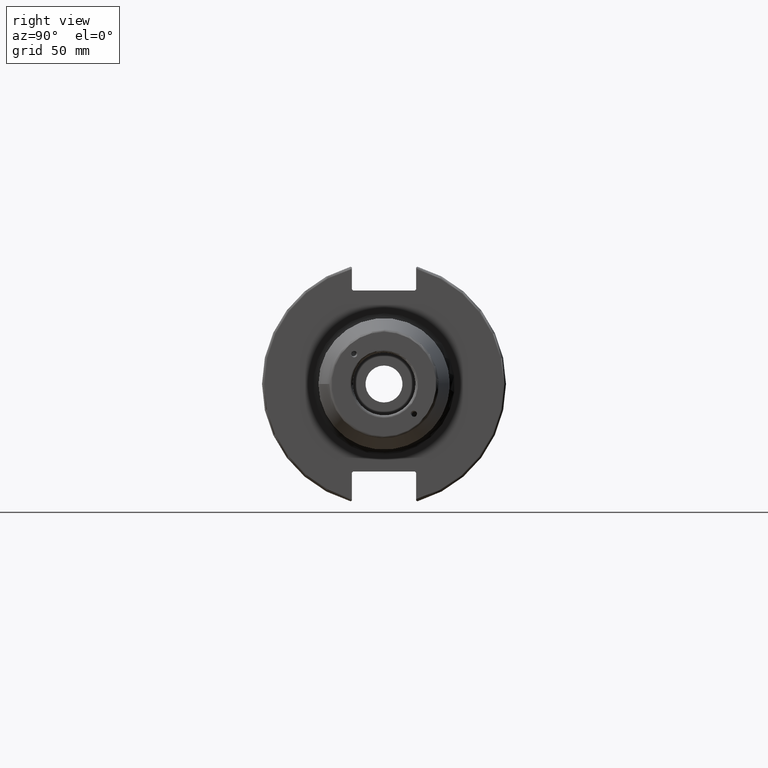
[diagram: clean part render]
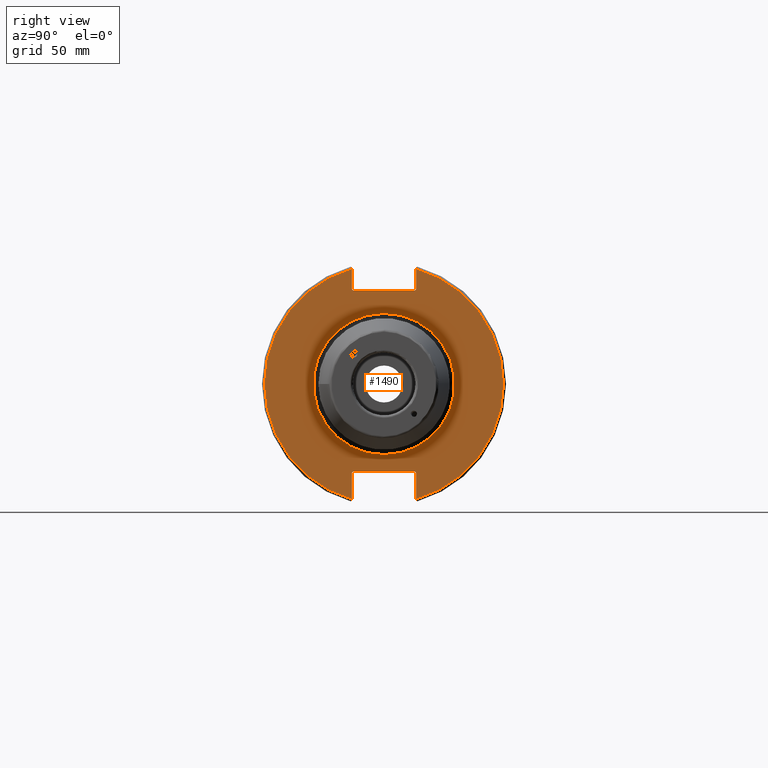
[diagram: same view with one face highlighted and labeled with its STEP entity id]
A machine part, right view. The second image highlights one B-rep face of the part: STEP entity #1490.
In plain terms, the highlighted planar face has unit normal (1, 0, 0).
Its self-contained STEP definition (entity closure, byte-faithful):
#86=LINE('',#2239,#180);
#87=LINE('',#2241,#181);
#88=LINE('',#2243,#182);
#89=LINE('',#2245,#183);
#90=LINE('',#2247,#184);
#91=LINE('',#2251,#185);
#92=LINE('',#2253,#186);
#93=LINE('',#2255,#187);
#94=LINE('',#2257,#188);
#95=LINE('',#2258,#189);
#180=VECTOR('',#1817,10.);
#181=VECTOR('',#1818,10.);
#182=VECTOR('',#1819,10.);
#183=VECTOR('',#1820,10.);
#184=VECTOR('',#1821,10.);
#185=VECTOR('',#1824,10.);
#186=VECTOR('',#1825,10.);
#187=VECTOR('',#1826,10.);
#188=VECTOR('',#1827,10.);
#189=VECTOR('',#1828,10.);
#302=FACE_BOUND('',#461,.T.);
#326=PLANE('',#1617);
#369=FACE_OUTER_BOUND('',#460,.T.);
#460=EDGE_LOOP('',(#1052,#1053,#1054,#1055,#1056,#1057,#1058,#1059,#1060,
#1061,#1062,#1063));
#461=EDGE_LOOP('',(#1064));
#572=CIRCLE('',#1614,28.5);
#574=CIRCLE('',#1618,48.2125);
#575=CIRCLE('',#1619,48.2125);
#648=VERTEX_POINT('',#2228);
#649=VERTEX_POINT('',#2235);
#650=VERTEX_POINT('',#2236);
#651=VERTEX_POINT('',#2238);
#652=VERTEX_POINT('',#2240);
#653=VERTEX_POINT('',#2242);
#654=VERTEX_POINT('',#2244);
#655=VERTEX_POINT('',#2246);
#656=VERTEX_POINT('',#2248);
#657=VERTEX_POINT('',#2250);
#658=VERTEX_POINT('',#2252);
#659=VERTEX_POINT('',#2254);
#660=VERTEX_POINT('',#2256);
#806=EDGE_CURVE('',#648,#648,#572,.T.);
#809=EDGE_CURVE('',#649,#650,#574,.T.);
#810=EDGE_CURVE('',#649,#651,#86,.T.);
#811=EDGE_CURVE('',#652,#651,#87,.T.);
#812=EDGE_CURVE('',#652,#653,#88,.T.);
#813=EDGE_CURVE('',#654,#653,#89,.T.);
#814=EDGE_CURVE('',#654,#655,#90,.T.);
#815=EDGE_CURVE('',#656,#655,#575,.T.);
#816=EDGE_CURVE('',#656,#657,#91,.T.);
#817=EDGE_CURVE('',#658,#657,#92,.T.);
#818=EDGE_CURVE('',#658,#659,#93,.T.);
#819=EDGE_CURVE('',#660,#659,#94,.T.);
#820=EDGE_CURVE('',#660,#650,#95,.T.);
#1052=ORIENTED_EDGE('',*,*,#809,.F.);
#1053=ORIENTED_EDGE('',*,*,#810,.T.);
#1054=ORIENTED_EDGE('',*,*,#811,.F.);
#1055=ORIENTED_EDGE('',*,*,#812,.T.);
#1056=ORIENTED_EDGE('',*,*,#813,.F.);
#1057=ORIENTED_EDGE('',*,*,#814,.T.);
#1058=ORIENTED_EDGE('',*,*,#815,.F.);
#1059=ORIENTED_EDGE('',*,*,#816,.T.);
#1060=ORIENTED_EDGE('',*,*,#817,.F.);
#1061=ORIENTED_EDGE('',*,*,#818,.T.);
#1062=ORIENTED_EDGE('',*,*,#819,.F.);
#1063=ORIENTED_EDGE('',*,*,#820,.T.);
#1064=ORIENTED_EDGE('',*,*,#806,.F.);
#1490=ADVANCED_FACE('',(#369,#302),#326,.T.);
#1614=AXIS2_PLACEMENT_3D('',#2230,#1806,#1807);
#1617=AXIS2_PLACEMENT_3D('',#2234,#1813,#1814);
#1618=AXIS2_PLACEMENT_3D('',#2237,#1815,#1816);
#1619=AXIS2_PLACEMENT_3D('',#2249,#1822,#1823);
#1806=DIRECTION('center_axis',(1.,0.,0.));
#1807=DIRECTION('ref_axis',(0.,-1.,-1.22464679914735E-16));
#1813=DIRECTION('center_axis',(1.,0.,0.));
#1814=DIRECTION('ref_axis',(0.,0.,-1.));
#1815=DIRECTION('center_axis',(-1.,0.,0.));
#1816=DIRECTION('ref_axis',(0.,1.,-6.12323399573677E-17));
#1817=DIRECTION('',(0.,0.,-1.));
#1818=DIRECTION('',(0.,0.707106781186549,0.707106781186546));
#1819=DIRECTION('',(0.,-1.,0.));
#1820=DIRECTION('',(0.,0.707106781186549,-0.707106781186546));
#1821=DIRECTION('',(0.,0.,1.));
#1822=DIRECTION('center_axis',(-1.,0.,0.));
#1823=DIRECTION('ref_axis',(0.,-1.,1.60812264967664E-16));
#1824=DIRECTION('',(0.,0.,1.));
#1825=DIRECTION('',(0.,-0.707106781186549,-0.707106781186546));
#1826=DIRECTION('',(0.,1.,0.));
#1827=DIRECTION('',(0.,-0.707106781186549,0.707106781186546));
#1828=DIRECTION('',(0.,0.,-1.));
#2228=CARTESIAN_POINT('',(19.05,-3.49024337756996E-15,-28.5));
#2230=CARTESIAN_POINT('Origin',(19.05,0.,0.));
#2234=CARTESIAN_POINT('Origin',(19.05,0.,0.));
#2235=CARTESIAN_POINT('',(19.05,12.95,46.4407434937254));
#2236=CARTESIAN_POINT('',(19.05,12.95,-46.4407434937254));
#2237=CARTESIAN_POINT('Origin',(19.05,0.,0.));
#2238=CARTESIAN_POINT('',(19.05,12.95,38.219));
#2239=CARTESIAN_POINT('',(19.05,12.95,18.8595));
#2240=CARTESIAN_POINT('',(19.05,12.45,37.719));
#2241=CARTESIAN_POINT('',(19.05,0.0327499999999836,25.30175));
#2242=CARTESIAN_POINT('',(19.05,-12.45,37.719));
#2243=CARTESIAN_POINT('',(19.05,0.,37.719));
#2244=CARTESIAN_POINT('',(19.05,-12.95,38.219));
#2245=CARTESIAN_POINT('',(19.05,-0.0327499999999817,25.30175));
#2246=CARTESIAN_POINT('',(19.05,-12.95,46.4407434937254));
#2247=CARTESIAN_POINT('',(19.05,-12.95,18.8595));
#2248=CARTESIAN_POINT('',(19.05,-12.95,-46.4407434937254));
#2249=CARTESIAN_POINT('Origin',(19.05,0.,0.));
#2250=CARTESIAN_POINT('',(19.05,-12.95,-35.806));
#2251=CARTESIAN_POINT('',(19.05,-12.95,-17.653));
#2252=CARTESIAN_POINT('',(19.05,-12.45,-35.306));
#2253=CARTESIAN_POINT('',(19.05,-0.635999999999989,-23.492));
#2254=CARTESIAN_POINT('',(19.05,12.45,-35.306));
#2255=CARTESIAN_POINT('',(19.05,-3.33066907387547E-15,-35.306));
#2256=CARTESIAN_POINT('',(19.05,12.95,-35.806));
#2257=CARTESIAN_POINT('',(19.05,0.635999999999982,-23.492));
#2258=CARTESIAN_POINT('',(19.05,12.95,-17.653));